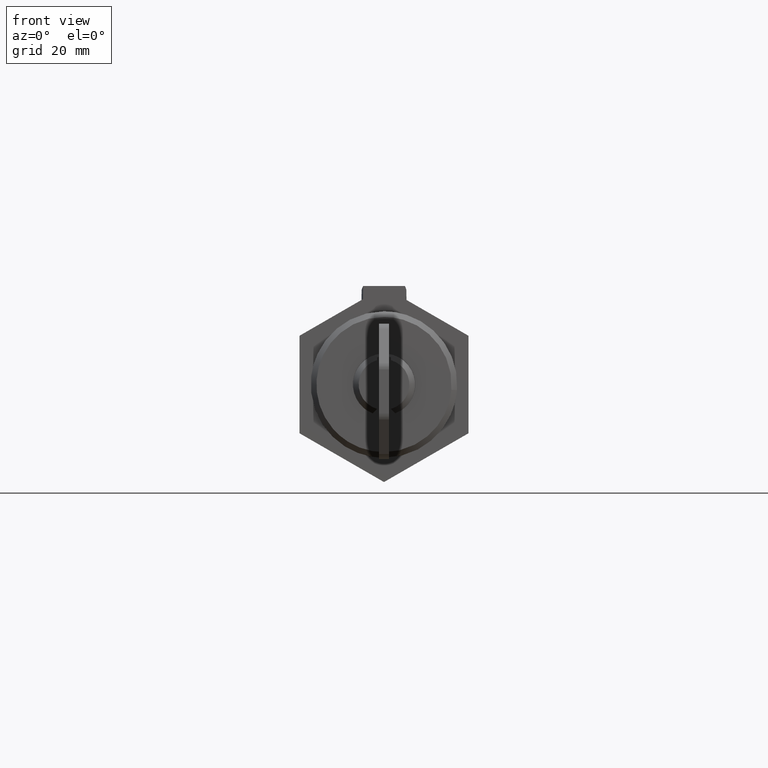
[diagram: clean part render]
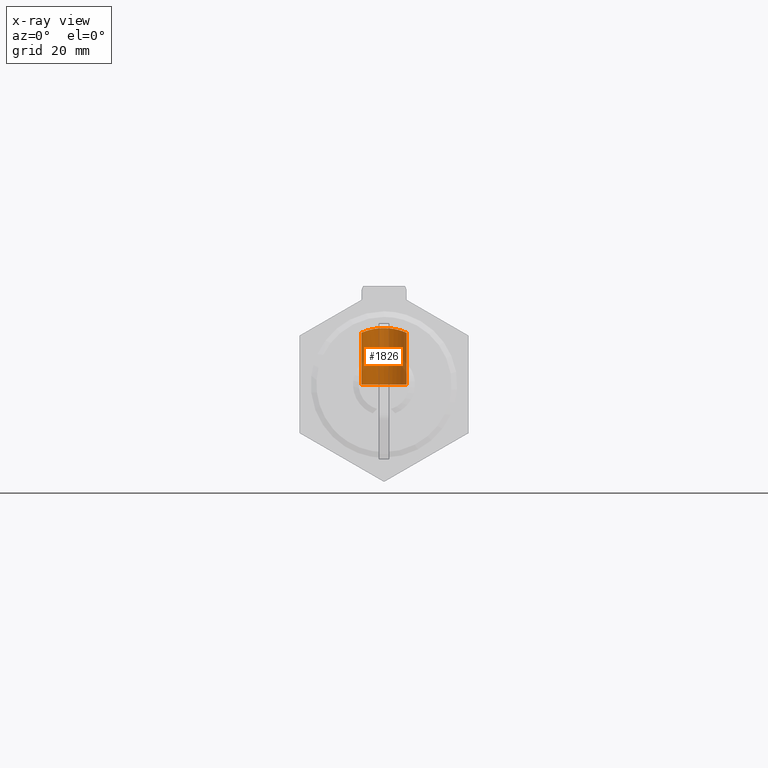
[diagram: x-ray — body ghosted, one internal face saturated and labeled with its STEP entity id]
A machine part, front view, then the same camera in x-ray: the body is ghosted and one INTERNAL B-rep face — a face not visible from any outside direction — is saturated and labeled: STEP entity #1826.
In plain terms, the highlighted face is a freeform B-spline surface patch.
Its self-contained STEP definition (entity closure, byte-faithful):
#1563=CARTESIAN_POINT('',(35.197281591393242,-4.018678165968932,-1.160246E-016));
#1564=VERTEX_POINT('',#1563);
#1578=CARTESIAN_POINT('',(35.735342469231099,4.049845788407404,4.718448E-016));
#1579=VERTEX_POINT('',#1578);
#1595=CARTESIAN_POINT('',(35.735342475711107,4.049846598933419,9.143235287139293));
#1596=VERTEX_POINT('',#1595);
#1597=CARTESIAN_POINT('',(35.735342475711107,4.049846598933419,9.143235287139293));
#1598=CARTESIAN_POINT('',(35.735342469231099,4.049845788407404,4.718448E-016));
#1599=QUASI_UNIFORM_CURVE('',1,(#1597,#1598),.UNSPECIFIED.,.F.,.U.);
#1600=EDGE_CURVE('',#1596,#1579,#1599,.T.);
#1647=CARTESIAN_POINT('',(35.197281465358706,-4.018679175272469,9.156976821384239));
#1648=VERTEX_POINT('',#1647);
#1684=CARTESIAN_POINT('',(35.197281465358706,-4.018679175272469,9.156976821384239));
#1685=CARTESIAN_POINT('',(35.197281591393242,-4.018678165968932,-1.160246E-016));
#1686=QUASI_UNIFORM_CURVE('',1,(#1684,#1685),.UNSPECIFIED.,.F.,.U.);
#1687=EDGE_CURVE('',#1648,#1564,#1686,.T.);
#1692=CARTESIAN_POINT('',(35.735342468769971,4.049845788411427,10.250000000002030));
#1693=CARTESIAN_POINT('',(39.785188257179847,4.014503319641462,10.250000000002029));
#1694=CARTESIAN_POINT('',(39.749845788409878,-0.035342468768417,10.250000000002030));
#1695=CARTESIAN_POINT('',(39.714503319639917,-4.085188257178294,10.250000000002029));
#1696=CARTESIAN_POINT('',(35.664657531230027,-4.049845788408329,10.250000000002030));
#1697=CARTESIAN_POINT('',(35.430066856217842,-4.047798546602462,10.250000000002027));
#1698=CARTESIAN_POINT('',(35.197281591575155,-4.018678165991688,10.250000000002029));
#1699=CARTESIAN_POINT('',(35.735342468769971,4.049845788411427,-0.256250000000051));
#1700=CARTESIAN_POINT('',(39.785188257179847,4.014503319641462,-0.256250000000051));
#1701=CARTESIAN_POINT('',(39.749845788409878,-0.035342468768417,-0.256250000000051));
#1702=CARTESIAN_POINT('',(39.714503319639917,-4.085188257178294,-0.256250000000051));
#1703=CARTESIAN_POINT('',(35.664657531230027,-4.049845788408329,-0.256250000000051));
#1704=CARTESIAN_POINT('',(35.430066856217842,-4.047798546602462,-0.256250000000051));
#1705=CARTESIAN_POINT('',(35.197281591575155,-4.018678165991688,-0.256250000000051));
#1713=(BOUNDED_SURFACE()B_SPLINE_SURFACE(2,1,((#1692,#1699),(#1693,#1700),(#1694,#1701),(#1695,#1702),(#1696,#1703),(#1697,#1704),(#1698,#1705)),.UNSPECIFIED.,.F.,.F.,.U.)B_SPLINE_SURFACE_WITH_KNOTS((3,2,2,3),(2,2),(0.0,6.710259710444137,13.420519420888271,13.957340197723809),(0.0,10.506250000002080),.UNSPECIFIED.)GEOMETRIC_REPRESENTATION_ITEM()RATIONAL_B_SPLINE_SURFACE(((1.0,1.0),(0.707106781186548,0.707106781186548),(1.0,1.0),(0.707106781186548,0.707106781186548),(1.0,1.0),(0.976568542494924,0.976568542494924),(0.956886118190660,0.956886118190660)))REPRESENTATION_ITEM('')SURFACE());
#1714=CARTESIAN_POINT('',(39.750000000000000,1.548983E-012,0.0));
#1715=VERTEX_POINT('',#1714);
#1716=CARTESIAN_POINT('',(35.197281591393235,-4.018678165968932,-1.160246E-016));
#1717=CARTESIAN_POINT('',(35.447665043304518,-4.049999999998451,0.0));
#1718=CARTESIAN_POINT('',(35.700000000000003,-4.049999999998451,0.0));
#1719=CARTESIAN_POINT('',(39.750000000000007,-4.049999999998451,0.0));
#1720=CARTESIAN_POINT('',(39.750000000000000,1.548983E-012,0.0));
#1728=(BOUNDED_CURVE()B_SPLINE_CURVE(2,(#1716,#1717,#1718,#1719,#1720),.UNSPECIFIED.,.F.,.U.)B_SPLINE_CURVE_WITH_KNOTS((3,2,3),(0.728526071013965,0.750000000000000,1.0),.UNSPECIFIED.)CURVE()GEOMETRIC_REPRESENTATION_ITEM()RATIONAL_B_SPLINE_CURVE((0.954005430244962,0.974841727274835,1.0,0.707106781186548,1.0))REPRESENTATION_ITEM(''));
#1729=EDGE_CURVE('',#1564,#1715,#1728,.T.);
#1730=ORIENTED_EDGE('',*,*,#1729,.F.);
#1731=ORIENTED_EDGE('',*,*,#1687,.F.);
#1732=CARTESIAN_POINT('',(39.750000000000007,-2.344587E-015,10.000000000001981));
#1733=VERTEX_POINT('',#1732);
#1734=CARTESIAN_POINT('',(39.750000000000007,-2.344587E-015,10.000000000001981));
#1735=CARTESIAN_POINT('',(39.750000003652403,-0.270637520229090,10.000000000001890));
#1736=CARTESIAN_POINT('',(39.723149715933502,-0.536208249023534,9.989040411944366));
#1737=CARTESIAN_POINT('',(39.644632052836620,-0.927397487944932,9.957763082841577));
#1738=CARTESIAN_POINT('',(39.612036020512342,-1.056591017839060,9.944859303864170));
#1739=CARTESIAN_POINT('',(39.553320744857572,-1.248557819955965,9.921958265752178));
#1740=CARTESIAN_POINT('',(39.532051215045868,-1.312381843575967,9.913711609983306));
#1741=CARTESIAN_POINT('',(39.486682647574391,-1.438053219568234,9.896263276008931));
#1742=CARTESIAN_POINT('',(39.462548804011377,-1.500039911323431,9.887047784252253));
#1743=CARTESIAN_POINT('',(39.334791210875849,-1.805848987019119,9.838712115564888));
#1744=CARTESIAN_POINT('',(39.210127519365550,-2.037417674578455,9.792827685801910));
#1745=CARTESIAN_POINT('',(38.989701847385760,-2.365956909339742,9.716732101743066));
#1746=CARTESIAN_POINT('',(38.910243458534183,-2.472677818923177,9.690041549171429));
#1747=CARTESIAN_POINT('',(38.743039492923081,-2.675763243460913,9.635939575343439));
#1748=CARTESIAN_POINT('',(38.655037285416448,-2.772597831493706,9.608432591739049));
#1749=CARTESIAN_POINT('',(38.470324938187467,-2.957168141703348,9.553241950512733));
#1750=CARTESIAN_POINT('',(38.373614790418863,-3.044903403705031,9.525556791470160));
#1751=CARTESIAN_POINT('',(38.221868257541139,-3.169694983795470,9.484458249541678));
#1752=CARTESIAN_POINT('',(38.170170256258373,-3.210154678726170,9.470830535151745));
#1753=CARTESIAN_POINT('',(38.064488678311960,-3.288772903882435,9.443817906020978));
#1754=CARTESIAN_POINT('',(38.010368840207612,-3.327021257551234,9.430400665168156));
#1755=CARTESIAN_POINT('',(37.735578859655270,-3.511262648551091,9.364588982869023));
#1756=CARTESIAN_POINT('',(37.504337283379158,-3.635402197368704,9.316427253728358));
#1757=CARTESIAN_POINT('',(37.140026839158153,-3.787629738416867,9.255098489034051));
#1758=CARTESIAN_POINT('',(37.015660959367047,-3.832663039633086,9.236475948948755));
#1759=CARTESIAN_POINT('',(36.824475066920947,-3.891335721128881,9.211837496625668));
#1760=CARTESIAN_POINT('',(36.759841919552763,-3.909443121544216,9.204160486747856));
#1761=CARTESIAN_POINT('',(36.629549049569022,-3.942454660292871,9.190068924037865));
#1762=CARTESIAN_POINT('',(36.564230740011112,-3.957279501920985,9.183688713195011));
#1763=CARTESIAN_POINT('',(36.236790191284221,-4.023151178237150,9.155192200109699));
#1764=CARTESIAN_POINT('',(35.972141360876122,-4.049682021587327,9.143307290321321));
#1765=CARTESIAN_POINT('',(35.637914945892739,-4.050074809228422,9.143133285589480));
#1766=CARTESIAN_POINT('',(35.570897618656772,-4.048499744969653,9.143831510650866));
#1767=CARTESIAN_POINT('',(35.436512488251658,-4.041978697806807,9.146715966547312));
#1768=CARTESIAN_POINT('',(35.368930400530260,-4.037007355445083,9.148913380437344));
#1769=CARTESIAN_POINT('',(35.266868419326883,-4.026924954199680,9.153353571468646));
#1770=CARTESIAN_POINT('',(35.232012377777203,-4.023022978158928,9.155070128837361));
#1771=CARTESIAN_POINT('',(35.197281465358706,-4.018679175272469,9.156976821384239));
#1772=B_SPLINE_CURVE_WITH_KNOTS('',3,(#1734,#1735,#1736,#1737,#1738,#1739,#1740,#1741,#1742,#1743,#1744,#1745,#1746,#1747,#1748,#1749,#1750,#1751,#1752,#1753,#1754,#1755,#1756,#1757,#1758,#1759,#1760,#1761,#1762,#1763,#1764,#1765,#1766,#1767,#1768,#1769,#1770,#1771),.UNSPECIFIED.,.F.,.U.,(4,2,2,2,2,2,2,2,2,2,2,2,2,2,2,2,2,2,4),(0.0,0.031249999999999,0.046874999999998,0.054687499999997,0.062499999999997,0.093749999999995,0.109374999999994,0.124999999999993,0.140624999999992,0.148437499999992,0.156249999999992,0.187499999999991,0.203124999999991,0.210937499999991,0.218749999999991,0.249999999999989,0.257812499999989,0.265624999999989,0.269699311428602),.UNSPECIFIED.);
#1773=EDGE_CURVE('',#1733,#1648,#1772,.T.);
#1774=ORIENTED_EDGE('',*,*,#1773,.F.);
#1775=CARTESIAN_POINT('',(35.735342475711107,4.049846598933419,9.143235287139293));
#1776=CARTESIAN_POINT('',(35.989475416718363,4.047650103816283,9.144219291872640));
#1777=CARTESIAN_POINT('',(36.242236780849588,4.021714870987500,9.155807181172166));
#1778=CARTESIAN_POINT('',(36.559603788492872,3.958296417120739,9.183250837872510));
#1779=CARTESIAN_POINT('',(36.625389401908457,3.943429580874834,9.189650701307038));
#1780=CARTESIAN_POINT('',(36.755226228562243,3.910687920435155,9.203631721245385));
#1781=CARTESIAN_POINT('',(36.819466586570741,3.892777184551154,9.211228445736163));
#1782=CARTESIAN_POINT('',(37.010209148863183,3.834518297549290,9.235704855507462));
#1783=CARTESIAN_POINT('',(37.259265863339671,3.744792460299265,9.272834889377293));
#1784=CARTESIAN_POINT('',(37.498144135987957,3.631360799163767,9.317603185558655));
#1785=CARTESIAN_POINT('',(37.673506967774287,3.537254746979260,9.353553145693439));
#1786=CARTESIAN_POINT('',(37.731428272780910,3.504309079216951,9.365956573909548));
#1787=CARTESIAN_POINT('',(37.844879601943283,3.436040518286023,9.391216653008195));
#1788=CARTESIAN_POINT('',(37.900535147310492,3.400657051155924,9.404097146953458));
#1789=CARTESIAN_POINT('',(38.173612145581437,3.217594750598462,9.469491458518677));
#1790=CARTESIAN_POINT('',(38.375599949173392,3.051683103056803,9.524957631062334));
#1791=CARTESIAN_POINT('',(38.654634293922783,2.773069130324112,9.608302894227842));
#1792=CARTESIAN_POINT('',(38.743976016703193,2.674702891085836,9.636235228184896));
#1793=CARTESIAN_POINT('',(38.911226525531291,2.471406431077398,9.690367133443591));
#1794=CARTESIAN_POINT('',(38.989479993588610,2.366214867808954,9.716660154672496));
#1795=CARTESIAN_POINT('',(39.208478409362769,2.040020825004424,9.792249204426414));
#1796=CARTESIAN_POINT('',(39.333640697980137,1.808516750484217,9.838278582285799));
#1797=CARTESIAN_POINT('',(39.462593776469767,1.499953889524648,9.887064375893003));
#1798=CARTESIAN_POINT('',(39.486872187667039,1.437546529982007,9.896335932149158));
#1799=CARTESIAN_POINT('',(39.532117586637789,1.312179787136819,9.913737393840906));
#1800=CARTESIAN_POINT('',(39.553137987210697,1.249094019539406,9.921887523746268));
#1801=CARTESIAN_POINT('',(39.611447442918433,1.058636752533558,9.944628692925129));
#1802=CARTESIAN_POINT('',(39.676544714458757,0.801498896288435,9.970392991106175));
#1803=CARTESIAN_POINT('',(39.716358103571068,0.537919873435314,9.986414880998709));
#1804=CARTESIAN_POINT('',(39.743148038959710,0.271005795903108,9.997219404627270));
#1805=CARTESIAN_POINT('',(39.750000000000057,0.135318774716353,10.000000000001981));
#1806=CARTESIAN_POINT('',(39.750000000000007,-2.561428E-015,10.000000000001981));
#1807=B_SPLINE_CURVE_WITH_KNOTS('',3,(#1775,#1776,#1777,#1778,#1779,#1780,#1781,#1782,#1783,#1784,#1785,#1786,#1787,#1788,#1789,#1790,#1791,#1792,#1793,#1794,#1795,#1796,#1797,#1798,#1799,#1800,#1801,#1802,#1803,#1804,#1805,#1806),.UNSPECIFIED.,.F.,.U.,(4,2,2,2,1,2,2,2,2,2,2,2,2,2,1,2,4),(0.751492315925806,0.781250000000007,0.789062500000007,0.796875000000007,0.812500000000007,0.828125000000007,0.835937500000006,0.843750000000006,0.875000000000004,0.890625000000004,0.906250000000003,0.937500000000002,0.945312500000002,0.953125000000001,0.968750000000001,0.984375000000001,1.0),.UNSPECIFIED.);
#1808=EDGE_CURVE('',#1596,#1733,#1807,.T.);
#1809=ORIENTED_EDGE('',*,*,#1808,.F.);
#1810=ORIENTED_EDGE('',*,*,#1600,.T.);
#1811=CARTESIAN_POINT('',(39.750000000000000,1.548983E-012,0.0));
#1812=CARTESIAN_POINT('',(39.750000000000007,4.014810401995349,0.0));
#1813=CARTESIAN_POINT('',(35.735342469231107,4.049845788407404,4.718448E-016));
#1821=(BOUNDED_CURVE()B_SPLINE_CURVE(2,(#1811,#1812,#1813),.UNSPECIFIED.,.F.,.U.)B_SPLINE_CURVE_WITH_KNOTS((3,3),(0.0,0.248460105624833),.UNSPECIFIED.)CURVE()GEOMETRIC_REPRESENTATION_ITEM()RATIONAL_B_SPLINE_CURVE((1.0,0.708910879667250,0.996414028007417))REPRESENTATION_ITEM(''));
#1822=EDGE_CURVE('',#1715,#1579,#1821,.T.);
#1823=ORIENTED_EDGE('',*,*,#1822,.F.);
#1824=EDGE_LOOP('',(#1730,#1731,#1774,#1809,#1810,#1823));
#1825=FACE_OUTER_BOUND('',#1824,.T.);
#1826=ADVANCED_FACE('',(#1825),#1713,.F.);